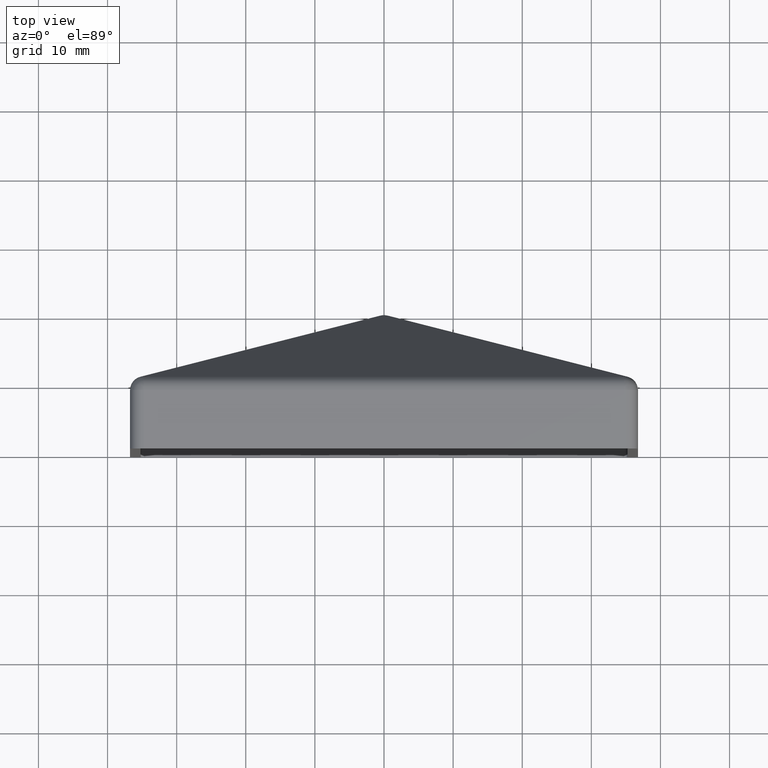
[diagram: clean part render]
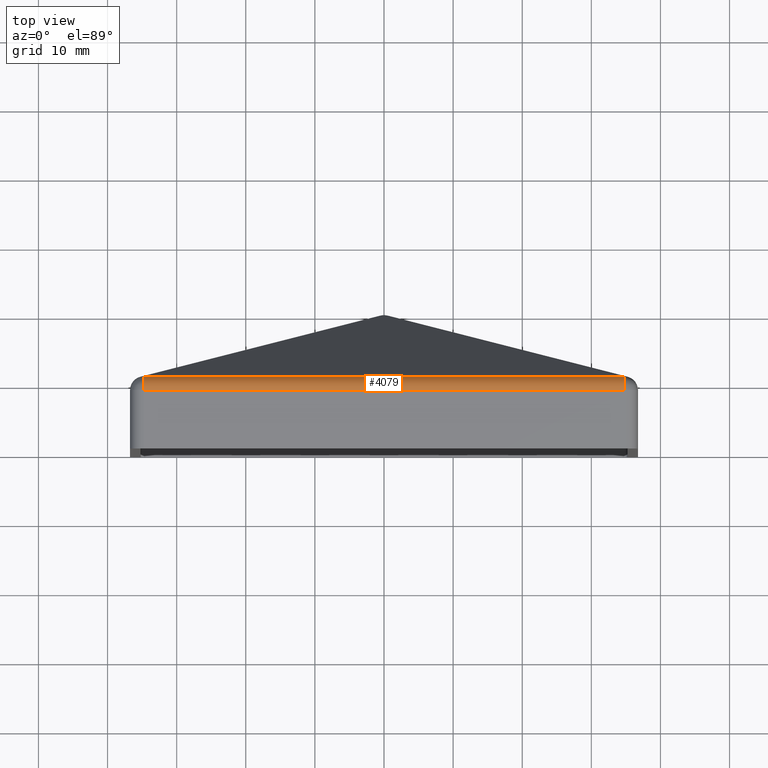
[diagram: same view with one face highlighted and labeled with its STEP entity id]
A machine part, top view. The second image highlights one B-rep face of the part: STEP entity #4079.
In plain terms, the highlighted cylindrical surface (edge-blend (fillet) strip) has radius 2 mm, axis along (1, -0, -0).
Its self-contained STEP definition (entity closure, byte-faithful):
#327 = EDGE_CURVE ( 'NONE', #12156, #8376, #6697, .T. ) ;
#494 = VECTOR ( 'NONE', #9836, 1000.000000000000000 ) ;
#517 = LINE ( 'NONE', #6736, #1947 ) ;
#640 = CIRCLE ( 'NONE', #5101, 2.000000000000001776 ) ;
#833 = EDGE_CURVE ( 'NONE', #8376, #1426, #640, .T. ) ;
#1166 = EDGE_CURVE ( 'NONE', #8823, #12156, #9705, .T. ) ;
#1273 = CARTESIAN_POINT ( 'NONE',  ( 34.75000000000000711, 8.471642575352495541, 34.74999999999998579 ) ) ;
#1420 = DIRECTION ( 'NONE',  ( 0.000000000000000000, 0.000000000000000000, -1.000000000000000000 ) ) ;
#1426 = VERTEX_POINT ( 'NONE', #6284 ) ;
#1702 = ORIENTED_EDGE ( 'NONE', *, *, #11563, .F. ) ;
#1947 = VECTOR ( 'NONE', #4759, 1000.000000000000000 ) ;
#2239 = DIRECTION ( 'NONE',  ( 1.000000000000000000, -0.000000000000000000, -4.440892098500625669E-16 ) ) ;
#3170 = DIRECTION ( 'NONE',  ( 0.000000000000000000, 0.000000000000000000, -1.000000000000000000 ) ) ;
#4051 = CARTESIAN_POINT ( 'NONE',  ( -36.75000000000002842, 8.471642575352495541, 34.75000000000001421 ) ) ;
#4079 = ADVANCED_FACE ( 'NONE', ( #10409 ), #4524, .T. ) ;
#4524 = CYLINDRICAL_SURFACE ( 'NONE', #4928, 2.000000000000001776 ) ;
#4643 = AXIS2_PLACEMENT_3D ( 'NONE', #7315, #2239, #1420 ) ;
#4759 = DIRECTION ( 'NONE',  ( 1.000000000000000000, -0.000000000000000000, -4.440892098500625669E-16 ) ) ;
#4928 = AXIS2_PLACEMENT_3D ( 'NONE', #4051, #10110, #3170 ) ;
#5101 = AXIS2_PLACEMENT_3D ( 'NONE', #1273, #8407, #6348 ) ;
#5914 = CARTESIAN_POINT ( 'NONE',  ( -36.75000000000002842, 8.471642575352495541, 36.75000000000002132 ) ) ;
#6224 = CARTESIAN_POINT ( 'NONE',  ( -34.74999999999998579, 10.40142443843568465, 35.27530178080338175 ) ) ;
#6284 = CARTESIAN_POINT ( 'NONE',  ( 34.75000000000000711, 10.40142443843568465, 35.27530178080334622 ) ) ;
#6348 = DIRECTION ( 'NONE',  ( 0.000000000000000000, 8.673617379884027583E-16, -1.000000000000000000 ) ) ;
#6697 = LINE ( 'NONE', #5914, #494 ) ;
#6736 = CARTESIAN_POINT ( 'NONE',  ( -36.75000000000002842, 10.40142443843568465, 35.27530178080338175 ) ) ;
#7315 = CARTESIAN_POINT ( 'NONE',  ( -34.74999999999998579, 8.471642575352495541, 34.75000000000001421 ) ) ;
#8376 = VERTEX_POINT ( 'NONE', #11750 ) ;
#8407 = DIRECTION ( 'NONE',  ( -1.000000000000000000, 0.000000000000000000, 4.440892098500625669E-16 ) ) ;
#8823 = VERTEX_POINT ( 'NONE', #6224 ) ;
#9164 = CARTESIAN_POINT ( 'NONE',  ( -34.74999999999998579, 8.471642575352495541, 36.75000000000002132 ) ) ;
#9202 = ORIENTED_EDGE ( 'NONE', *, *, #833, .T. ) ;
#9432 = EDGE_LOOP ( 'NONE', ( #10546, #9202, #1702, #12200 ) ) ;
#9705 = CIRCLE ( 'NONE', #4643, 2.000000000000001776 ) ;
#9836 = DIRECTION ( 'NONE',  ( 1.000000000000000000, -0.000000000000000000, -4.440892098500625669E-16 ) ) ;
#10110 = DIRECTION ( 'NONE',  ( 1.000000000000000000, -0.000000000000000000, -4.440892098500625669E-16 ) ) ;
#10409 = FACE_OUTER_BOUND ( 'NONE', #9432, .T. ) ;
#10546 = ORIENTED_EDGE ( 'NONE', *, *, #327, .T. ) ;
#11563 = EDGE_CURVE ( 'NONE', #8823, #1426, #517, .T. ) ;
#11750 = CARTESIAN_POINT ( 'NONE',  ( 34.75000000000000711, 8.471642575352495541, 36.74999999999998579 ) ) ;
#12156 = VERTEX_POINT ( 'NONE', #9164 ) ;
#12200 = ORIENTED_EDGE ( 'NONE', *, *, #1166, .T. ) ;